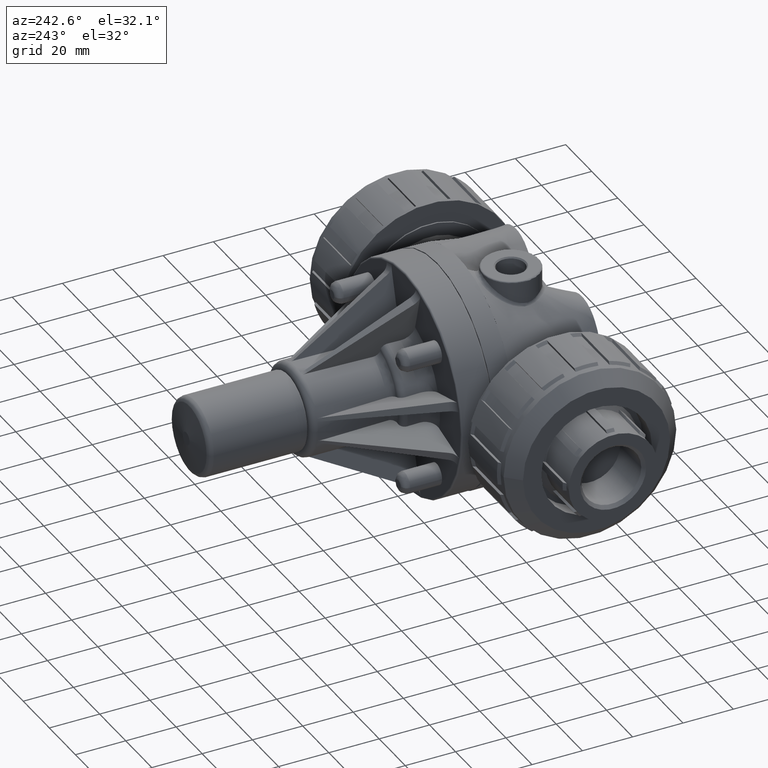
[diagram: clean part render]
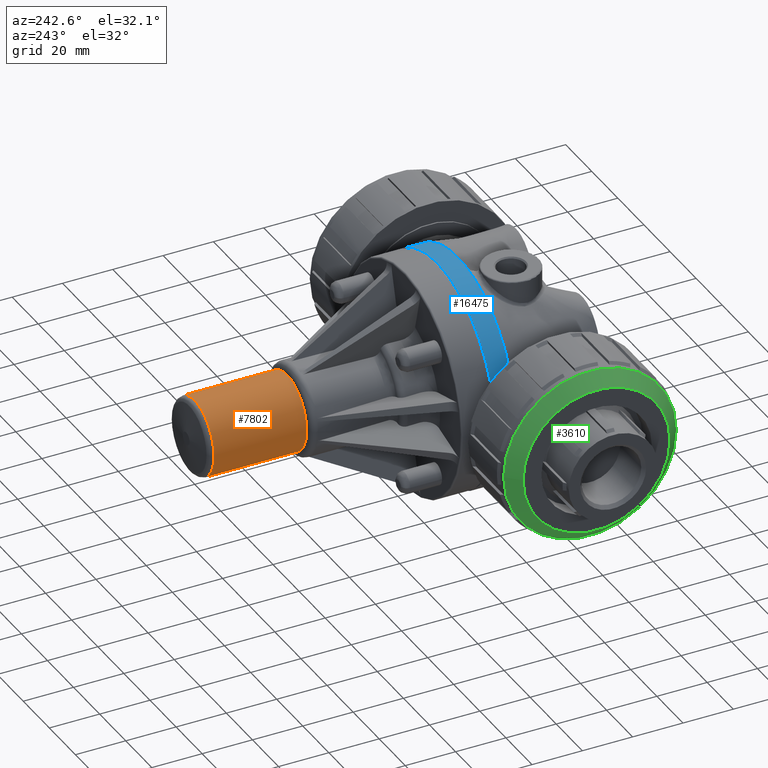
[diagram: same view with three faces highlighted in distinct colors, each labeled with its STEP entity id]
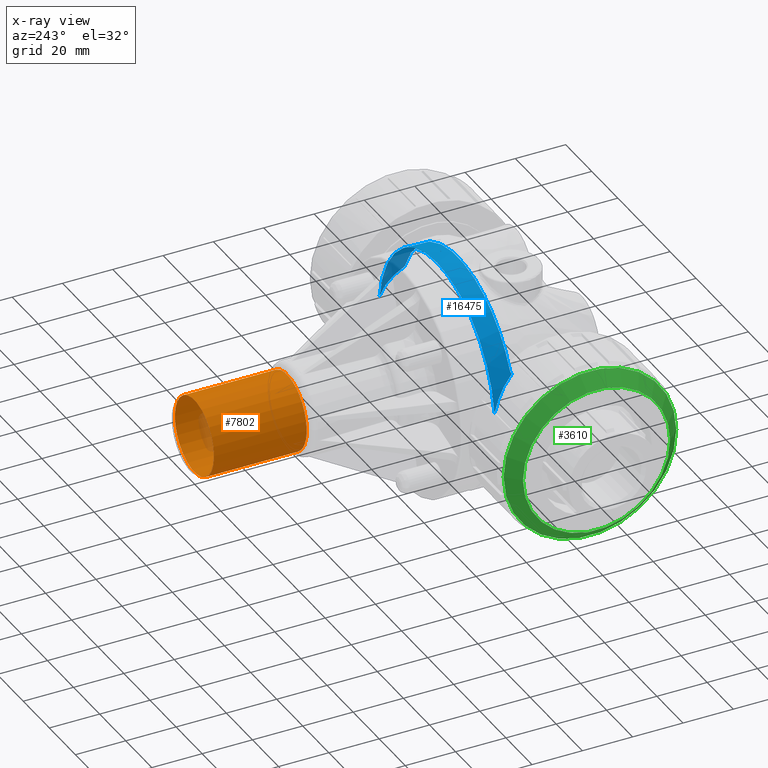
[diagram: x-ray of the same camera — body ghosted, the three highlighted faces saturated]
A machine part, auxiliary view with three faces highlighted in distinct colors.
The next image is the same camera in x-ray (body ghosted, the three faces saturated) — at least one of them is partly hidden behind the body in this view.
Their STEP definitions:

[orange] entity #7802 — the highlighted cylindrical surface (bore or boss wall) has radius 14.986 mm, axis along (0, -1, 0).
#7768=CARTESIAN_POINT('',(0.589830213315427,5.546805212730062,-0.000083713102550));
#7769=VERTEX_POINT('',#7768);
#7770=CARTESIAN_POINT('',(-0.000169786684573,5.546805212730062,-0.000083713102550));
#7771=DIRECTION('',(0.0,-1.0,0.0));
#7772=DIRECTION('',(1.0,0.0,0.0));
#7773=AXIS2_PLACEMENT_3D('',#7770,#7771,#7772);
#7774=CIRCLE('',#7773,0.590000000000000);
#7775=EDGE_CURVE('',#7769,#7769,#7774,.T.);
#7783=CARTESIAN_POINT('',(-0.000169786684573,4.820902606365031,-0.000083713102550));
#7784=DIRECTION('',(0.0,-1.0,4.117620E-035));
#7785=DIRECTION('',(1.0,0.0,0.0));
#7786=AXIS2_PLACEMENT_3D('',#7783,#7784,#7785);
#7787=CYLINDRICAL_SURFACE('',#7786,0.590000000000000);
#7788=CARTESIAN_POINT('',(0.589830213315427,4.095000000000001,-0.000083713102550));
#7789=VERTEX_POINT('',#7788);
#7790=CARTESIAN_POINT('',(-0.000169786684573,4.095000000000001,-0.000083713102550));
#7791=DIRECTION('',(0.0,-1.0,0.0));
#7792=DIRECTION('',(1.0,0.0,0.0));
#7793=AXIS2_PLACEMENT_3D('',#7790,#7791,#7792);
#7794=CIRCLE('',#7793,0.590000000000000);
#7795=EDGE_CURVE('',#7789,#7789,#7794,.T.);
#7796=ORIENTED_EDGE('',*,*,#7795,.F.);
#7797=EDGE_LOOP('',(#7796));
#7798=FACE_OUTER_BOUND('',#7797,.T.);
#7799=ORIENTED_EDGE('',*,*,#7775,.T.);
#7800=EDGE_LOOP('',(#7799));
#7801=FACE_BOUND('',#7800,.T.);
#7802=ADVANCED_FACE('',(#7798,#7801),#7787,.T.);

[blue] entity #16475 — the highlighted cylindrical surface (partial cylindrical patch) has radius 44.45 mm, axis along (0, 1, 0).
#7848=CARTESIAN_POINT('',(-0.510231144690755,1.425000000000000,1.673934629410127));
#7849=VERTEX_POINT('',#7848);
#7850=CARTESIAN_POINT('',(0.503601388617969,1.425000000000000,1.675838302664979));
#7851=VERTEX_POINT('',#7850);
#7904=CARTESIAN_POINT('',(-0.000169786684573,1.425000000000001,-0.000083713102550));
#7905=DIRECTION('',(-2.646662E-032,-1.0,8.175553E-033));
#7906=DIRECTION('',(-0.955453942857143,2.770057E-032,0.295140243068850));
#7907=AXIS2_PLACEMENT_3D('',#7904,#7905,#7906);
#7908=CIRCLE('',#7907,1.750000000000000);
#7909=EDGE_CURVE('',#7851,#7849,#7908,.T.);
#9444=CARTESIAN_POINT('',(-1.577639089155228,1.425000000000001,0.757603953263181));
#9445=VERTEX_POINT('',#9444);
#9452=CARTESIAN_POINT('',(-0.773967965121319,1.425000000000000,1.569545663230594));
#9453=VERTEX_POINT('',#9452);
#9467=CARTESIAN_POINT('',(-0.000169786684573,1.425000000000001,-0.000083713102550));
#9468=DIRECTION('',(-2.646662E-032,-1.0,8.175553E-033));
#9469=DIRECTION('',(-0.955453942857143,2.770057E-032,0.295140243068850));
#9470=AXIS2_PLACEMENT_3D('',#9467,#9468,#9469);
#9471=CIRCLE('',#9470,1.750000000000000);
#9472=EDGE_CURVE('',#9453,#9445,#9471,.T.);
#15149=CARTESIAN_POINT('',(-0.773967965116031,1.425000000000000,1.569545663233201));
#15150=CARTESIAN_POINT('',(-0.674972296464304,1.425000000000000,1.618362004175997));
#15151=CARTESIAN_POINT('',(-0.586377318096262,1.425000000000000,1.650457845295416));
#15152=CARTESIAN_POINT('',(-0.516495425370488,1.425000000000000,1.672044400000000));
#15153=CARTESIAN_POINT('',(-0.514430769661432,1.425000000000000,1.672682173272463));
#15154=CARTESIAN_POINT('',(-0.512342916077607,1.425000000000000,1.673312454828002));
#15155=CARTESIAN_POINT('',(-0.510231144690671,1.425000000000000,1.673934629410152));
#15156=B_SPLINE_CURVE_WITH_KNOTS('',3,(#15149,#15150,#15151,#15152,#15153,#15154,#15155),.UNSPECIFIED.,.F.,.U.,(4,3,4),(0.775594382931169,0.805246789884389,0.806122868206186),.UNSPECIFIED.);
#15157=EDGE_CURVE('',#9453,#7849,#15156,.T.);
#15206=CARTESIAN_POINT('',(-1.596503935112633,1.404185361185234,0.717005742295584));
#15207=VERTEX_POINT('',#15206);
#15208=CARTESIAN_POINT('',(-1.577639089155228,1.425000000000001,0.757603953263181));
#15209=CARTESIAN_POINT('',(-1.580582766151729,1.425000000000001,0.751475359246807));
#15210=CARTESIAN_POINT('',(-1.583707204636507,1.423807206653428,0.744869614720086));
#15211=CARTESIAN_POINT('',(-1.589447091234497,1.418775821985713,0.732544339803288));
#15212=CARTESIAN_POINT('',(-1.592063720248623,1.414933576350905,0.726826851495430));
#15213=CARTESIAN_POINT('',(-1.594977035393399,1.408504772338268,0.720398047482793));
#15214=CARTESIAN_POINT('',(-1.595776926464882,1.406436652225573,0.718624157516763));
#15215=CARTESIAN_POINT('',(-1.596503934830757,1.404185360884595,0.717005742587881));
#15216=B_SPLINE_CURVE_WITH_KNOTS('',3,(#15208,#15209,#15210,#15211,#15212,#15213,#15214,#15215),.UNSPECIFIED.,.F.,.U.,(4,2,2,4),(0.606697309453393,0.658504847692232,0.710312385931071,0.731253481828662),.UNSPECIFIED.);
#15217=EDGE_CURVE('',#9445,#15207,#15216,.T.);
#15324=CARTESIAN_POINT('',(-1.734434364513137,1.750000000000001,0.234066610598089));
#15325=VERTEX_POINT('',#15324);
#15390=CARTESIAN_POINT('',(-1.603147351887326,1.424999999806395,0.702029472542511));
#15391=VERTEX_POINT('',#15390);
#15392=CARTESIAN_POINT('',(-1.596503857166027,1.404177429030363,0.716994363260420));
#15393=CARTESIAN_POINT('',(-1.598702895411222,1.411185190163854,0.712094290404288));
#15394=CARTESIAN_POINT('',(-1.600918689230324,1.418121448356461,0.707095893987226));
#15395=CARTESIAN_POINT('',(-1.603146606103700,1.424981569733737,0.702004314582861));
#15396=B_SPLINE_CURVE_WITH_KNOTS('',3,(#15392,#15393,#15394,#15395),.UNSPECIFIED.,.F.,.U.,(4,4),(-16.884066785241654,-16.816755629453972),.UNSPECIFIED.);
#15397=EDGE_CURVE('',#15207,#15391,#15396,.T.);
#15399=CARTESIAN_POINT('',(-1.603146606113153,1.424981569762843,0.702004314561259));
#15400=CARTESIAN_POINT('',(-1.608795081530153,1.442374151783486,0.689095546983802));
#15401=CARTESIAN_POINT('',(-1.631138212272064,1.508326600174982,0.636391403683963));
#15402=CARTESIAN_POINT('',(-1.670162597956883,1.608332219004199,0.530814629325915));
#15403=CARTESIAN_POINT('',(-1.708892663445354,1.695858152311682,0.387154775035548));
#15404=CARTESIAN_POINT('',(-1.727410313952622,1.735239340123383,0.284693332121166));
#15405=CARTESIAN_POINT('',(-1.733743086026383,1.748545693898102,0.239194895541431));
#15406=CARTESIAN_POINT('',(-1.734433808424314,1.749994799612166,0.234065066684061));
#15407=B_SPLINE_CURVE_WITH_KNOTS('',3,(#15399,#15400,#15401,#15402,#15403,#15404,#15405,#15406),.UNSPECIFIED.,.F.,.U.,(4,1,1,1,1,4),(-16.816755629358777,-16.646100515025630,-16.150897623898508,-15.655694732771382,-15.325559472019965,-15.283773979196924),.UNSPECIFIED.);
#15408=EDGE_CURVE('',#15391,#15325,#15407,.T.);
#15660=CARTESIAN_POINT('',(1.602807778625733,1.424999999972041,0.702029472296959));
#15661=VERTEX_POINT('',#15660);
#15669=CARTESIAN_POINT('',(-0.000169786684573,1.425000000000001,-0.000083713102550));
#15670=DIRECTION('',(0.0,-1.0,0.0));
#15671=DIRECTION('',(-0.955453942857143,0.0,0.295140243068850));
#15672=AXIS2_PLACEMENT_3D('',#15669,#15670,#15671);
#15673=CIRCLE('',#15672,1.750000000000000);
#15674=EDGE_CURVE('',#15661,#7851,#15673,.T.);
#16442=CARTESIAN_POINT('',(-0.000169786684573,1.425000000000001,-0.000083713102550));
#16443=DIRECTION('',(0.0,1.0,0.0));
#16444=DIRECTION('',(-0.955453942857143,0.0,0.295140243068850));
#16445=AXIS2_PLACEMENT_3D('',#16442,#16443,#16444);
#16446=CYLINDRICAL_SURFACE('',#16445,1.750000000000000);
#16447=CARTESIAN_POINT('',(1.734094791126312,1.749999999981482,0.234066610729035));
#16448=VERTEX_POINT('',#16447);
#16449=CARTESIAN_POINT('',(1.734087557554633,1.749985269715548,0.234061467308787));
#16450=CARTESIAN_POINT('',(1.729057782407047,1.739450006292478,0.271307202962046));
#16451=CARTESIAN_POINT('',(1.710552410337574,1.700210415273222,0.381349344777529));
#16452=CARTESIAN_POINT('',(1.674579581096629,1.619769083092432,0.514382876398228));
#16453=CARTESIAN_POINT('',(1.633468140622634,1.514839634876070,0.629382480000063));
#16454=CARTESIAN_POINT('',(1.612916898908011,1.456138858938511,0.678949617774950));
#16455=CARTESIAN_POINT('',(1.602807778628159,1.424999999985460,0.702029472315352));
#16456=B_SPLINE_CURVE_WITH_KNOTS('',3,(#16449,#16450,#16451,#16452,#16453,#16454,#16455),.UNSPECIFIED.,.F.,.U.,(4,1,1,1,4),(-14.048050500399194,-13.743508370358612,-13.128850960904099,-12.821522256176841,-12.514344268949063),.UNSPECIFIED.);
#16457=EDGE_CURVE('',#16448,#15661,#16456,.T.);
#16458=ORIENTED_EDGE('',*,*,#16457,.F.);
#16459=CARTESIAN_POINT('',(-0.000169786684573,1.750000000000001,-0.000083713102550));
#16460=DIRECTION('',(-2.646662E-032,-1.0,8.175553E-033));
#16461=DIRECTION('',(-0.955453942857143,2.770057E-032,0.295140243068850));
#16462=AXIS2_PLACEMENT_3D('',#16459,#16460,#16461);
#16463=CIRCLE('',#16462,1.750000000000000);
#16464=EDGE_CURVE('',#16448,#15325,#16463,.T.);
#16465=ORIENTED_EDGE('',*,*,#16464,.T.);
#16466=ORIENTED_EDGE('',*,*,#15408,.F.);
#16467=ORIENTED_EDGE('',*,*,#15397,.F.);
#16468=ORIENTED_EDGE('',*,*,#15217,.F.);
#16469=ORIENTED_EDGE('',*,*,#9472,.F.);
#16470=ORIENTED_EDGE('',*,*,#15157,.T.);
#16471=ORIENTED_EDGE('',*,*,#7909,.F.);
#16472=ORIENTED_EDGE('',*,*,#15674,.F.);
#16473=EDGE_LOOP('',(#16458,#16465,#16466,#16467,#16468,#16469,#16470,#16471,#16472));
#16474=FACE_OUTER_BOUND('',#16473,.T.);
#16475=ADVANCED_FACE('',(#16474),#16446,.T.);

[green] entity #3610 — the highlighted conical surface has half-angle 45 deg.
#3579=CARTESIAN_POINT('',(-2.926169786684573,2.225499999999999,-0.000167426205097));
#3580=VERTEX_POINT('',#3579);
#3581=CARTESIAN_POINT('',(-2.926169786684573,0.874499999999999,-0.000167426205100));
#3582=DIRECTION('',(-1.0,0.0,0.0));
#3583=DIRECTION('',(0.0,-1.0,0.0));
#3584=AXIS2_PLACEMENT_3D('',#3581,#3582,#3583);
#3585=CIRCLE('',#3584,1.351000000000000);
#3586=EDGE_CURVE('',#3580,#3580,#3585,.T.);
#3591=CARTESIAN_POINT('',(-3.026169786684573,0.874499999999999,-0.000167426205100));
#3592=DIRECTION('',(1.0,3.135642E-016,-2.319214E-015));
#3593=DIRECTION('',(0.0,-1.0,0.0));
#3594=AXIS2_PLACEMENT_3D('',#3591,#3592,#3593);
#3595=CONICAL_SURFACE('',#3594,1.251000000000000,45.000000000000007);
#3596=ORIENTED_EDGE('',*,*,#3586,.T.);
#3597=EDGE_LOOP('',(#3596));
#3598=FACE_OUTER_BOUND('',#3597,.T.);
#3599=CARTESIAN_POINT('',(-3.126169786684574,2.025499999999999,-0.000167426205097));
#3600=VERTEX_POINT('',#3599);
#3601=CARTESIAN_POINT('',(-3.126169786684573,0.874499999999999,-0.000167426205100));
#3602=DIRECTION('',(1.0,0.0,0.0));
#3603=DIRECTION('',(0.0,-1.0,0.0));
#3604=AXIS2_PLACEMENT_3D('',#3601,#3602,#3603);
#3605=CIRCLE('',#3604,1.151000000000000);
#3606=EDGE_CURVE('',#3600,#3600,#3605,.T.);
#3607=ORIENTED_EDGE('',*,*,#3606,.T.);
#3608=EDGE_LOOP('',(#3607));
#3609=FACE_BOUND('',#3608,.T.);
#3610=ADVANCED_FACE('',(#3598,#3609),#3595,.T.);